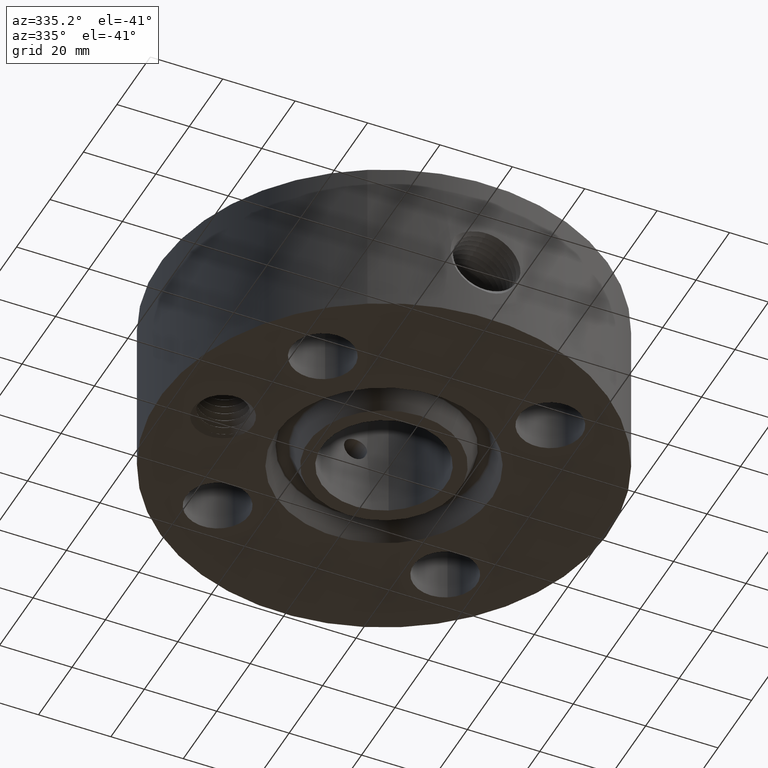
[diagram: clean part render]
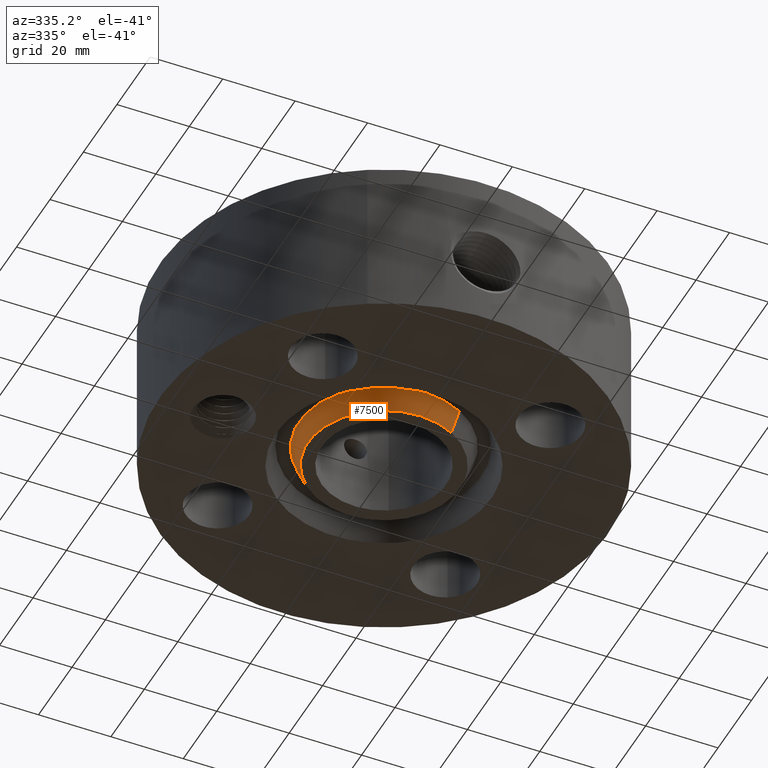
[diagram: same view with one face highlighted and labeled with its STEP entity id]
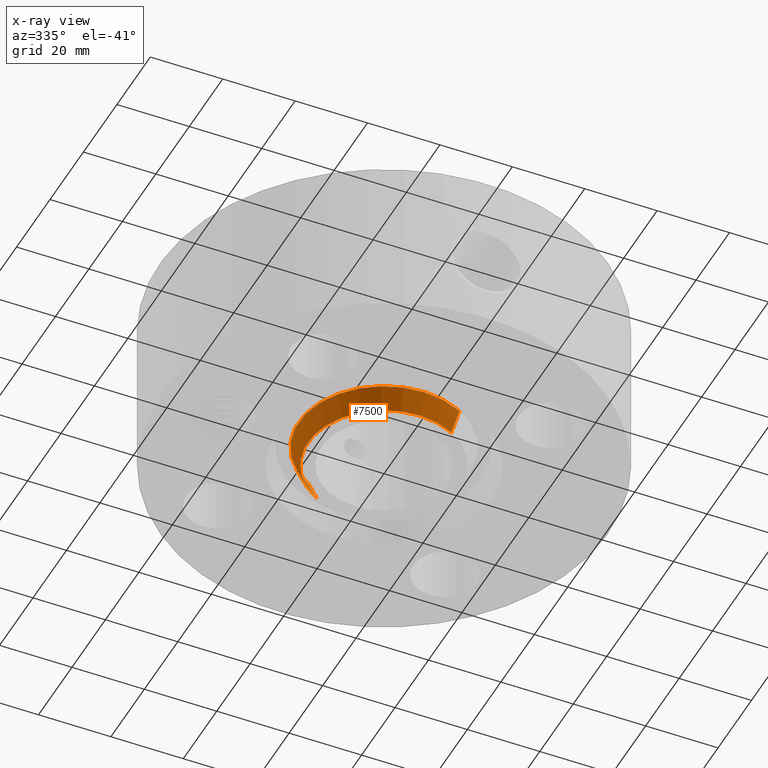
[diagram: x-ray of the same camera — body ghosted, the highlighted face saturated]
A machine part, auxiliary view. The second image highlights one B-rep face of the part: STEP entity #7500.
The next image is the same camera in x-ray: the body ghosted, the highlighted face saturated — about 0% of this face is hidden behind the body in this view.
In plain terms, the highlighted conical surface has half-angle 23 deg.
Its self-contained STEP definition (entity closure, byte-faithful):
#3968=AXIS2_PLACEMENT_3D('Circle Axis2P3D',#3966,#3967,$) ;
#7473=AXIS2_PLACEMENT_3D('Cone Axis2P3D',#7470,#7471,#7472) ;
#7491=AXIS2_PLACEMENT_3D('Circle Axis2P3D',#7489,#7490,$) ;
#3963=CARTESIAN_POINT('Vertex',(-0.443996713314,0.812730532203,0.231112664984)) ;
#3966=CARTESIAN_POINT('Axis2P3D Location',(0.,0.,0.231112664984)) ;
#3970=CARTESIAN_POINT('Vertex',(0.443996713314,-0.812730532203,0.231112664984)) ;
#7470=CARTESIAN_POINT('Axis2P3D Location',(0.,0.,-0.0600000000002)) ;
#7475=CARTESIAN_POINT('Line Origine',(0.42048052964,-0.769684446725,0.115556332492)) ;
#7479=CARTESIAN_POINT('Vertex',(0.396964345966,-0.726638361248,0.)) ;
#7482=CARTESIAN_POINT('Line Origine',(-0.42048052964,0.769684446725,0.115556332492)) ;
#7486=CARTESIAN_POINT('Vertex',(-0.396964345966,0.726638361248,-3.49676543189E-017)) ;
#7489=CARTESIAN_POINT('Axis2P3D Location',(0.,0.,0.)) ;
#3967=DIRECTION('Axis2P3D Direction',(0.,0.,0.0393700787402)) ;
#7471=DIRECTION('Axis2P3D Direction',(0.,0.,0.0393700787402)) ;
#7472=DIRECTION('Axis2P3D XDirection',(0.0188750212049,-0.0345504945626,0.)) ;
#7476=DIRECTION('Vector Direction',(0.00737505833565,-0.0134999537303,0.0362403485611)) ;
#7483=DIRECTION('Vector Direction',(-0.00737505833565,0.0134999537303,0.0362403485611)) ;
#7490=DIRECTION('Axis2P3D Direction',(0.,0.,0.0393700787402)) ;
#7477=VECTOR('Line Direction',#7476,0.0393700787402) ;
#7484=VECTOR('Line Direction',#7483,0.0393700787402) ;
#7495=ORIENTED_EDGE('',*,*,#7481,.F.) ;
#7496=ORIENTED_EDGE('',*,*,#3972,.F.) ;
#7497=ORIENTED_EDGE('',*,*,#7488,.T.) ;
#7498=ORIENTED_EDGE('',*,*,#7493,.F.) ;
#7500=ADVANCED_FACE('PartBody',(#7499),#7474,.T.) ;
#3969=CIRCLE('generated circle',#3968,0.926101505996) ;
#7492=CIRCLE('generated circle',#7491,0.828000000003) ;
#7474=CONICAL_SURFACE('Cone',#7473,0.802531511031,0.401425727959) ;
#3972=EDGE_CURVE('',#3964,#3971,#3969,.T.) ;
#7481=EDGE_CURVE('',#3971,#7480,#7478,.F.) ;
#7488=EDGE_CURVE('',#3964,#7487,#7485,.F.) ;
#7493=EDGE_CURVE('',#7480,#7487,#7492,.F.) ;
#7494=EDGE_LOOP('',(#7495,#7496,#7497,#7498)) ;
#7499=FACE_OUTER_BOUND('',#7494,.T.) ;
#7478=LINE('Line',#7475,#7477) ;
#7485=LINE('Line',#7482,#7484) ;
#3964=VERTEX_POINT('',#3963) ;
#3971=VERTEX_POINT('',#3970) ;
#7480=VERTEX_POINT('',#7479) ;
#7487=VERTEX_POINT('',#7486) ;